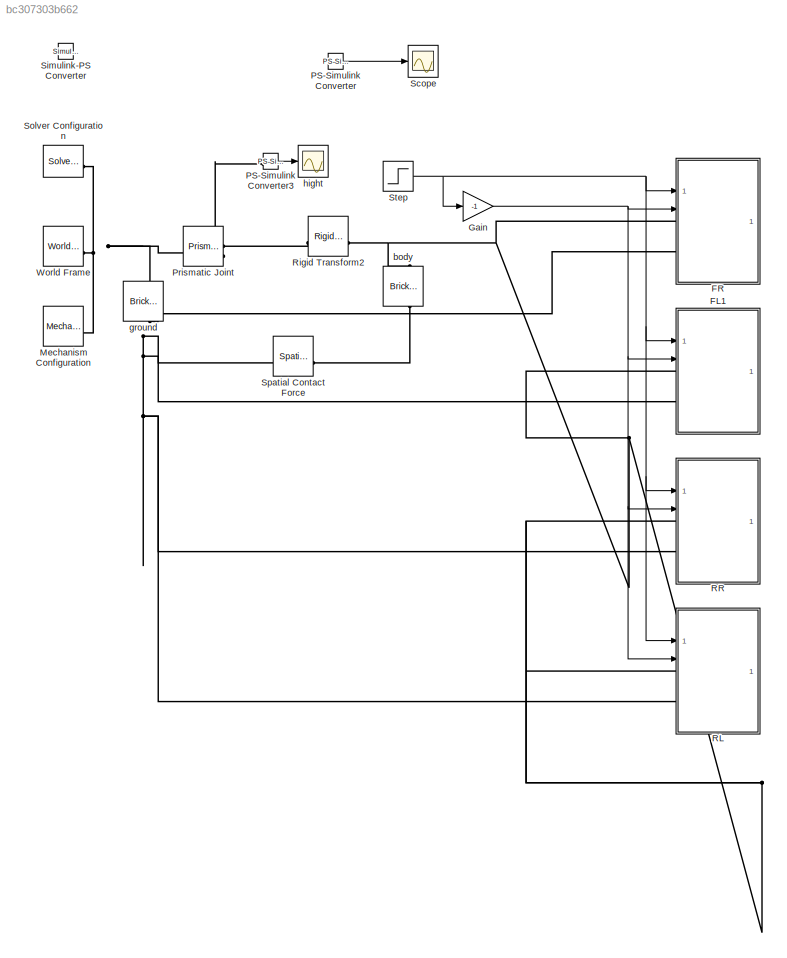
MODEL slx_bc307303b662
KIND model
CONFIG AbsTol = 1e-3
CONFIG EnableMultiTasking = on
CONFIG FixedStep = auto
CONFIG MaxStep = auto
CONFIG MinStep = auto
CONFIG RelTol = 1e-3
CONFIG SampleTimeConstraint = Unconstrained
CONFIG SolverName = VariableStepAuto
CONFIG StartTime = 0.0
CONFIG StopTime = 1
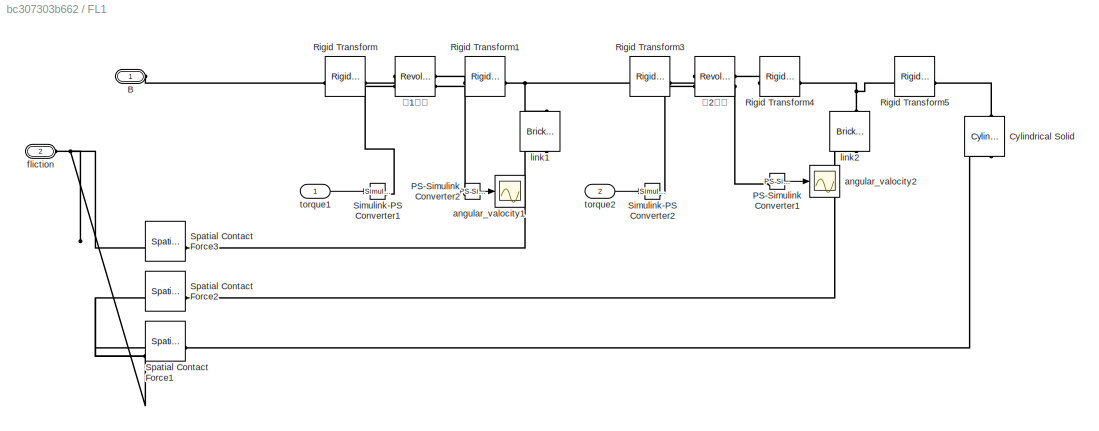
BLOCK [SubSystem] FL1
BLOCK [PMIOPort] FL1/B
  Side = Left
BLOCK [Reference] FL1/Cylindrical Solid  REF=sm_lib/Body Elements/Cylindrical Solid
  NameLocation = right
  SourceBlock = sm_lib/Body Elements/Cylindrical Solid
  SourceType = Cylindrical Solid
BLOCK [Reference] FL1/PS-Simulink Converter1  REF=nesl_utility/PS-Simulink
Converter
  SourceBlock = nesl_utility/PS-Simulink\nConverter
  SourceType = PS-Simulink\nConverter
BLOCK [Reference] FL1/PS-Simulink Converter2  REF=nesl_utility/PS-Simulink
Converter
  SourceBlock = nesl_utility/PS-Simulink\nConverter
  SourceType = PS-Simulink\nConverter
BLOCK [Reference] FL1/Rigid Transform  REF=sm_lib/Frames and
Transforms/Rigid
Transform
  SourceBlock = sm_lib/Frames and\nTransforms/Rigid\nTransform
  SourceType = Rigid\nTransform
BLOCK [Reference] FL1/Rigid Transform1  REF=sm_lib/Frames and
Transforms/Rigid
Transform
  SourceBlock = sm_lib/Frames and\nTransforms/Rigid\nTransform
  SourceType = Rigid\nTransform
BLOCK [Reference] FL1/Rigid Transform3  REF=sm_lib/Frames and
Transforms/Rigid
Transform
  SourceBlock = sm_lib/Frames and\nTransforms/Rigid\nTransform
  SourceType = Rigid\nTransform
BLOCK [Reference] FL1/Rigid Transform4  REF=sm_lib/Frames and
Transforms/Rigid
Transform
  SourceBlock = sm_lib/Frames and\nTransforms/Rigid\nTransform
  SourceType = Rigid\nTransform
BLOCK [Reference] FL1/Rigid Transform5  REF=sm_lib/Frames and
Transforms/Rigid
Transform
  SourceBlock = sm_lib/Frames and\nTransforms/Rigid\nTransform
  SourceType = Rigid\nTransform
BLOCK [Reference] FL1/Simulink-PS Converter1  REF=nesl_utility/Simulink-PS
Converter
  SourceBlock = nesl_utility/Simulink-PS\nConverter
  SourceType = Simulink-PS\nConverter
BLOCK [Reference] FL1/Simulink-PS Converter2  REF=nesl_utility/Simulink-PS
Converter
  SourceBlock = nesl_utility/Simulink-PS\nConverter
  SourceType = Simulink-PS\nConverter
BLOCK [Reference] FL1/Spatial Contact Force1  REF=sm_lib/Forces and
Torques/Spatial
Contact Force
  SourceBlock = sm_lib/Forces and\nTorques/Spatial\nContact Force
  SourceType = Spatial\nContact Force
BLOCK [Reference] FL1/Spatial Contact Force2  REF=sm_lib/Forces and
Torques/Spatial
Contact Force
  SourceBlock = sm_lib/Forces and\nTorques/Spatial\nContact Force
  SourceType = Spatial\nContact Force
BLOCK [Reference] FL1/Spatial Contact Force3  REF=sm_lib/Forces and
Torques/Spatial
Contact Force
  SourceBlock = sm_lib/Forces and\nTorques/Spatial\nContact Force
  SourceType = Spatial\nContact Force
BLOCK [Scope] FL1/angular_valocity1
  Floating = off
  NumInputPorts = 1
  ScopeSpecificationString = Simulink.scopes.TimeScopeBlockCfg('CurrentConfiguration', extmgr.ConfigurationSet(extmgr.Configuration('Core','General UI',true),extmgr.Configuration('Core','Source UI',true),extmgr.Configuration('Sources','WiredSimulink',true,'DataLoggingVariableName','ScopeData2'),extmgr.Configuration('Visuals','Time Domain',true,'SerializedDisplays',{struct('MinYLimReal','-14.41471','MaxYLimReal','43.3043','YLa...<+1426ch>
BLOCK [Scope] FL1/angular_valocity2
  Floating = off
  NumInputPorts = 1
  ScopeSpecificationString = Simulink.scopes.TimeScopeBlockCfg('CurrentConfiguration', extmgr.ConfigurationSet(extmgr.Configuration('Core','General UI',true),extmgr.Configuration('Core','Source UI',true),extmgr.Configuration('Sources','WiredSimulink',true,'DataLoggingVariableName','ScopeData1'),extmgr.Configuration('Visuals','Time Domain',true,'SerializedDisplays',{struct('MinYLimReal','-91.67363','MaxYLimReal','32.42749','YL...<+1417ch>
BLOCK [PMIOPort] FL1/fliction
  Port = 2
  Side = Left
BLOCK [Reference] FL1/link1  REF=sm_lib/Body Elements/Brick Solid
  SourceBlock = sm_lib/Body Elements/Brick Solid
  SourceType = Brick Solid
BLOCK [Reference] FL1/link2  REF=sm_lib/Body Elements/Brick Solid
  SourceBlock = sm_lib/Body Elements/Brick Solid
  SourceType = Brick Solid
BLOCK [Inport] FL1/torque1
BLOCK [Inport] FL1/torque2
  Port = 2
BLOCK [Reference] FL1/第1関節  REF=sm_lib/Joints/Revolute Joint
  SourceBlock = sm_lib/Joints/Revolute Joint
  SourceType = Revolute Joint
BLOCK [Reference] FL1/第2関節  REF=sm_lib/Joints/Revolute Joint
  SourceBlock = sm_lib/Joints/Revolute Joint
  SourceType = Revolute Joint
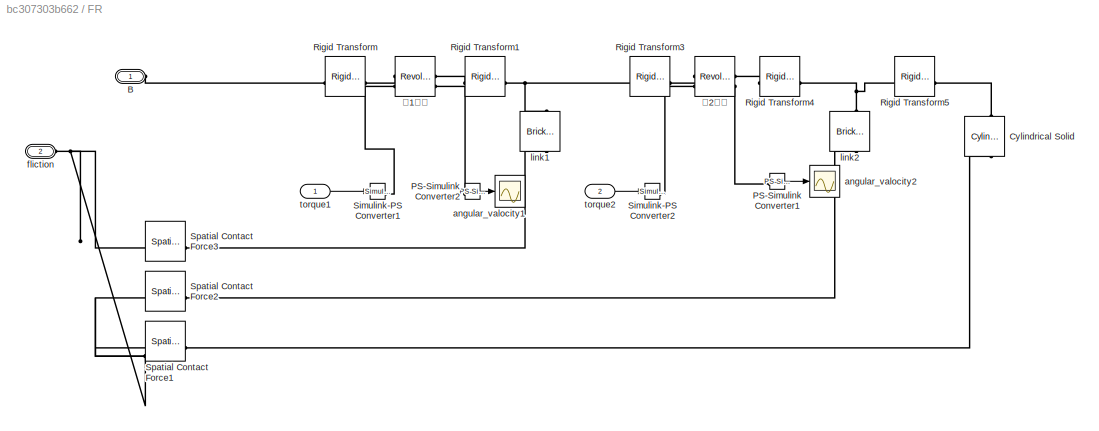
BLOCK [SubSystem] FR
BLOCK [PMIOPort] FR/B
  Side = Left
BLOCK [Reference] FR/Cylindrical Solid  REF=sm_lib/Body Elements/Cylindrical Solid
  NameLocation = right
  SourceBlock = sm_lib/Body Elements/Cylindrical Solid
  SourceType = Cylindrical Solid
BLOCK [Reference] FR/PS-Simulink Converter1  REF=nesl_utility/PS-Simulink
Converter
  SourceBlock = nesl_utility/PS-Simulink\nConverter
  SourceType = PS-Simulink\nConverter
BLOCK [Reference] FR/PS-Simulink Converter2  REF=nesl_utility/PS-Simulink
Converter
  SourceBlock = nesl_utility/PS-Simulink\nConverter
  SourceType = PS-Simulink\nConverter
BLOCK [Reference] FR/Rigid Transform  REF=sm_lib/Frames and
Transforms/Rigid
Transform
  SourceBlock = sm_lib/Frames and\nTransforms/Rigid\nTransform
  SourceType = Rigid\nTransform
BLOCK [Reference] FR/Rigid Transform1  REF=sm_lib/Frames and
Transforms/Rigid
Transform
  SourceBlock = sm_lib/Frames and\nTransforms/Rigid\nTransform
  SourceType = Rigid\nTransform
BLOCK [Reference] FR/Rigid Transform3  REF=sm_lib/Frames and
Transforms/Rigid
Transform
  SourceBlock = sm_lib/Frames and\nTransforms/Rigid\nTransform
  SourceType = Rigid\nTransform
BLOCK [Reference] FR/Rigid Transform4  REF=sm_lib/Frames and
Transforms/Rigid
Transform
  SourceBlock = sm_lib/Frames and\nTransforms/Rigid\nTransform
  SourceType = Rigid\nTransform
BLOCK [Reference] FR/Rigid Transform5  REF=sm_lib/Frames and
Transforms/Rigid
Transform
  SourceBlock = sm_lib/Frames and\nTransforms/Rigid\nTransform
  SourceType = Rigid\nTransform
BLOCK [Reference] FR/Simulink-PS Converter1  REF=nesl_utility/Simulink-PS
Converter
  SourceBlock = nesl_utility/Simulink-PS\nConverter
  SourceType = Simulink-PS\nConverter
BLOCK [Reference] FR/Simulink-PS Converter2  REF=nesl_utility/Simulink-PS
Converter
  SourceBlock = nesl_utility/Simulink-PS\nConverter
  SourceType = Simulink-PS\nConverter
BLOCK [Reference] FR/Spatial Contact Force1  REF=sm_lib/Forces and
Torques/Spatial
Contact Force
  SourceBlock = sm_lib/Forces and\nTorques/Spatial\nContact Force
  SourceType = Spatial\nContact Force
BLOCK [Reference] FR/Spatial Contact Force2  REF=sm_lib/Forces and
Torques/Spatial
Contact Force
  SourceBlock = sm_lib/Forces and\nTorques/Spatial\nContact Force
  SourceType = Spatial\nContact Force
BLOCK [Reference] FR/Spatial Contact Force3  REF=sm_lib/Forces and
Torques/Spatial
Contact Force
  SourceBlock = sm_lib/Forces and\nTorques/Spatial\nContact Force
  SourceType = Spatial\nContact Force
BLOCK [Scope] FR/angular_valocity1
  Floating = off
  NumInputPorts = 1
  ScopeSpecificationString = Simulink.scopes.TimeScopeBlockCfg('CurrentConfiguration', extmgr.ConfigurationSet(extmgr.Configuration('Core','General UI',true),extmgr.Configuration('Core','Source UI',true),extmgr.Configuration('Sources','WiredSimulink',true,'DataLoggingVariableName','ScopeData2'),extmgr.Configuration('Visuals','Time Domain',true,'SerializedDisplays',{struct('MinYLimReal','-32.30264','MaxYLimReal','35.50326','YL...<+1430ch>
BLOCK [Scope] FR/angular_valocity2
  Floating = off
  NumInputPorts = 1
  ScopeSpecificationString = Simulink.scopes.TimeScopeBlockCfg('CurrentConfiguration', extmgr.ConfigurationSet(extmgr.Configuration('Core','General UI',true),extmgr.Configuration('Core','Source UI',true),extmgr.Configuration('Sources','WiredSimulink',true,'DataLoggingVariableName','ScopeData1'),extmgr.Configuration('Visuals','Time Domain',true,'SerializedDisplays',{struct('MinYLimReal','-70.56607','MaxYLimReal','42.69296','YL...<+1417ch>
BLOCK [PMIOPort] FR/fliction
  Port = 2
  Side = Left
BLOCK [Reference] FR/link1  REF=sm_lib/Body Elements/Brick Solid
  SourceBlock = sm_lib/Body Elements/Brick Solid
  SourceType = Brick Solid
BLOCK [Reference] FR/link2  REF=sm_lib/Body Elements/Brick Solid
  SourceBlock = sm_lib/Body Elements/Brick Solid
  SourceType = Brick Solid
BLOCK [Inport] FR/torque1
BLOCK [Inport] FR/torque2
  Port = 2
BLOCK [Reference] FR/第1関節  REF=sm_lib/Joints/Revolute Joint
  SourceBlock = sm_lib/Joints/Revolute Joint
  SourceType = Revolute Joint
BLOCK [Reference] FR/第2関節  REF=sm_lib/Joints/Revolute Joint
  SourceBlock = sm_lib/Joints/Revolute Joint
  SourceType = Revolute Joint
BLOCK [Gain] Gain
  Gain = -1
BLOCK [Reference] Mechanism Configuration  REF=sm_lib/Utilities/Mechanism
Configuration
  SourceBlock = sm_lib/Utilities/Mechanism\nConfiguration
  SourceType = Mechanism\nConfiguration
BLOCK [Reference] PS-Simulink Converter  REF=nesl_utility/PS-Simulink
Converter
  SourceBlock = nesl_utility/PS-Simulink\nConverter
  SourceType = PS-Simulink\nConverter
BLOCK [Reference] PS-Simulink Converter3  REF=nesl_utility/PS-Simulink
Converter
  SourceBlock = nesl_utility/PS-Simulink\nConverter
  SourceType = PS-Simulink\nConverter
BLOCK [Reference] Prismatic Joint  REF=sm_lib/Joints/Prismatic
Joint
  SourceBlock = sm_lib/Joints/Prismatic\nJoint
  SourceType = Prismatic\nJoint
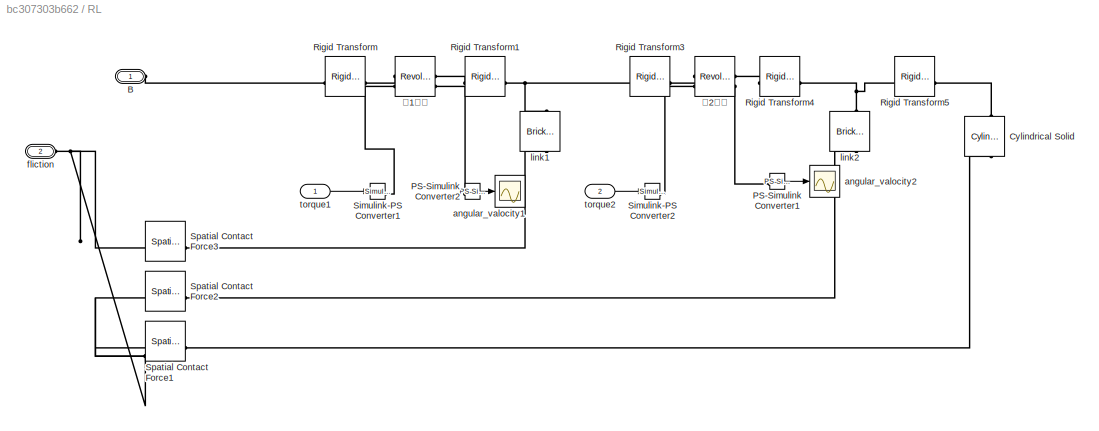
BLOCK [SubSystem] RL
BLOCK [PMIOPort] RL/B
  Side = Left
BLOCK [Reference] RL/Cylindrical Solid  REF=sm_lib/Body Elements/Cylindrical Solid
  NameLocation = right
  SourceBlock = sm_lib/Body Elements/Cylindrical Solid
  SourceType = Cylindrical Solid
BLOCK [Reference] RL/PS-Simulink Converter1  REF=nesl_utility/PS-Simulink
Converter
  SourceBlock = nesl_utility/PS-Simulink\nConverter
  SourceType = PS-Simulink\nConverter
BLOCK [Reference] RL/PS-Simulink Converter2  REF=nesl_utility/PS-Simulink
Converter
  SourceBlock = nesl_utility/PS-Simulink\nConverter
  SourceType = PS-Simulink\nConverter
BLOCK [Reference] RL/Rigid Transform  REF=sm_lib/Frames and
Transforms/Rigid
Transform
  SourceBlock = sm_lib/Frames and\nTransforms/Rigid\nTransform
  SourceType = Rigid\nTransform
BLOCK [Reference] RL/Rigid Transform1  REF=sm_lib/Frames and
Transforms/Rigid
Transform
  SourceBlock = sm_lib/Frames and\nTransforms/Rigid\nTransform
  SourceType = Rigid\nTransform
BLOCK [Reference] RL/Rigid Transform3  REF=sm_lib/Frames and
Transforms/Rigid
Transform
  SourceBlock = sm_lib/Frames and\nTransforms/Rigid\nTransform
  SourceType = Rigid\nTransform
BLOCK [Reference] RL/Rigid Transform4  REF=sm_lib/Frames and
Transforms/Rigid
Transform
  SourceBlock = sm_lib/Frames and\nTransforms/Rigid\nTransform
  SourceType = Rigid\nTransform
BLOCK [Reference] RL/Rigid Transform5  REF=sm_lib/Frames and
Transforms/Rigid
Transform
  SourceBlock = sm_lib/Frames and\nTransforms/Rigid\nTransform
  SourceType = Rigid\nTransform
BLOCK [Reference] RL/Simulink-PS Converter1  REF=nesl_utility/Simulink-PS
Converter
  SourceBlock = nesl_utility/Simulink-PS\nConverter
  SourceType = Simulink-PS\nConverter
BLOCK [Reference] RL/Simulink-PS Converter2  REF=nesl_utility/Simulink-PS
Converter
  SourceBlock = nesl_utility/Simulink-PS\nConverter
  SourceType = Simulink-PS\nConverter
BLOCK [Reference] RL/Spatial Contact Force1  REF=sm_lib/Forces and
Torques/Spatial
Contact Force
  SourceBlock = sm_lib/Forces and\nTorques/Spatial\nContact Force
  SourceType = Spatial\nContact Force
BLOCK [Reference] RL/Spatial Contact Force2  REF=sm_lib/Forces and
Torques/Spatial
Contact Force
  SourceBlock = sm_lib/Forces and\nTorques/Spatial\nContact Force
  SourceType = Spatial\nContact Force
BLOCK [Reference] RL/Spatial Contact Force3  REF=sm_lib/Forces and
Torques/Spatial
Contact Force
  SourceBlock = sm_lib/Forces and\nTorques/Spatial\nContact Force
  SourceType = Spatial\nContact Force
BLOCK [Scope] RL/angular_valocity1
  Floating = off
  NumInputPorts = 1
  ScopeSpecificationString = Simulink.scopes.TimeScopeBlockCfg('CurrentConfiguration', extmgr.ConfigurationSet(extmgr.Configuration('Core','General UI',true),extmgr.Configuration('Core','Source UI',true),extmgr.Configuration('Sources','WiredSimulink',true,'DataLoggingVariableName','ScopeData2'),extmgr.Configuration('Visuals','Time Domain',true,'SerializedDisplays',{struct('MinYLimReal','-14.41471','MaxYLimReal','43.3043','YLa...<+1426ch>
BLOCK [Scope] RL/angular_valocity2
  Floating = off
  NumInputPorts = 1
  ScopeSpecificationString = Simulink.scopes.TimeScopeBlockCfg('CurrentConfiguration', extmgr.ConfigurationSet(extmgr.Configuration('Core','General UI',true),extmgr.Configuration('Core','Source UI',true),extmgr.Configuration('Sources','WiredSimulink',true,'DataLoggingVariableName','ScopeData1'),extmgr.Configuration('Visuals','Time Domain',true,'SerializedDisplays',{struct('MinYLimReal','-91.67363','MaxYLimReal','32.42749','YL...<+1417ch>
BLOCK [PMIOPort] RL/fliction
  Port = 2
  Side = Left
BLOCK [Reference] RL/link1  REF=sm_lib/Body Elements/Brick Solid
  SourceBlock = sm_lib/Body Elements/Brick Solid
  SourceType = Brick Solid
BLOCK [Reference] RL/link2  REF=sm_lib/Body Elements/Brick Solid
  SourceBlock = sm_lib/Body Elements/Brick Solid
  SourceType = Brick Solid
BLOCK [Inport] RL/torque1
BLOCK [Inport] RL/torque2
  Port = 2
BLOCK [Reference] RL/第1関節  REF=sm_lib/Joints/Revolute Joint
  SourceBlock = sm_lib/Joints/Revolute Joint
  SourceType = Revolute Joint
BLOCK [Reference] RL/第2関節  REF=sm_lib/Joints/Revolute Joint
  SourceBlock = sm_lib/Joints/Revolute Joint
  SourceType = Revolute Joint
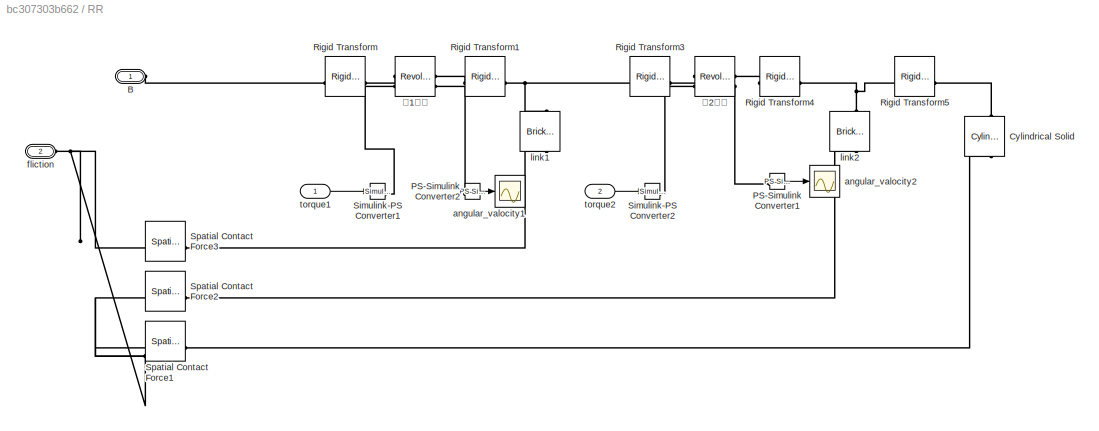
BLOCK [SubSystem] RR
BLOCK [PMIOPort] RR/B
  Side = Left
BLOCK [Reference] RR/Cylindrical Solid  REF=sm_lib/Body Elements/Cylindrical Solid
  NameLocation = right
  SourceBlock = sm_lib/Body Elements/Cylindrical Solid
  SourceType = Cylindrical Solid
BLOCK [Reference] RR/PS-Simulink Converter1  REF=nesl_utility/PS-Simulink
Converter
  SourceBlock = nesl_utility/PS-Simulink\nConverter
  SourceType = PS-Simulink\nConverter
BLOCK [Reference] RR/PS-Simulink Converter2  REF=nesl_utility/PS-Simulink
Converter
  SourceBlock = nesl_utility/PS-Simulink\nConverter
  SourceType = PS-Simulink\nConverter
BLOCK [Reference] RR/Rigid Transform  REF=sm_lib/Frames and
Transforms/Rigid
Transform
  SourceBlock = sm_lib/Frames and\nTransforms/Rigid\nTransform
  SourceType = Rigid\nTransform
BLOCK [Reference] RR/Rigid Transform1  REF=sm_lib/Frames and
Transforms/Rigid
Transform
  SourceBlock = sm_lib/Frames and\nTransforms/Rigid\nTransform
  SourceType = Rigid\nTransform
BLOCK [Reference] RR/Rigid Transform3  REF=sm_lib/Frames and
Transforms/Rigid
Transform
  SourceBlock = sm_lib/Frames and\nTransforms/Rigid\nTransform
  SourceType = Rigid\nTransform
BLOCK [Reference] RR/Rigid Transform4  REF=sm_lib/Frames and
Transforms/Rigid
Transform
  SourceBlock = sm_lib/Frames and\nTransforms/Rigid\nTransform
  SourceType = Rigid\nTransform
BLOCK [Reference] RR/Rigid Transform5  REF=sm_lib/Frames and
Transforms/Rigid
Transform
  SourceBlock = sm_lib/Frames and\nTransforms/Rigid\nTransform
  SourceType = Rigid\nTransform
BLOCK [Reference] RR/Simulink-PS Converter1  REF=nesl_utility/Simulink-PS
Converter
  SourceBlock = nesl_utility/Simulink-PS\nConverter
  SourceType = Simulink-PS\nConverter
BLOCK [Reference] RR/Simulink-PS Converter2  REF=nesl_utility/Simulink-PS
Converter
  SourceBlock = nesl_utility/Simulink-PS\nConverter
  SourceType = Simulink-PS\nConverter
BLOCK [Reference] RR/Spatial Contact Force1  REF=sm_lib/Forces and
Torques/Spatial
Contact Force
  SourceBlock = sm_lib/Forces and\nTorques/Spatial\nContact Force
  SourceType = Spatial\nContact Force
BLOCK [Reference] RR/Spatial Contact Force2  REF=sm_lib/Forces and
Torques/Spatial
Contact Force
  SourceBlock = sm_lib/Forces and\nTorques/Spatial\nContact Force
  SourceType = Spatial\nContact Force
BLOCK [Reference] RR/Spatial Contact Force3  REF=sm_lib/Forces and
Torques/Spatial
Contact Force
  SourceBlock = sm_lib/Forces and\nTorques/Spatial\nContact Force
  SourceType = Spatial\nContact Force
BLOCK [Scope] RR/angular_valocity1
  Floating = off
  NumInputPorts = 1
  ScopeSpecificationString = Simulink.scopes.TimeScopeBlockCfg('CurrentConfiguration', extmgr.ConfigurationSet(extmgr.Configuration('Core','General UI',true),extmgr.Configuration('Core','Source UI',true),extmgr.Configuration('Sources','WiredSimulink',true,'DataLoggingVariableName','ScopeData2'),extmgr.Configuration('Visuals','Time Domain',true,'SerializedDisplays',{struct('MinYLimReal','-15.2755','MaxYLimReal','53.61427','YLa...<+1428ch>
BLOCK [Scope] RR/angular_valocity2
  Floating = off
  NumInputPorts = 1
  ScopeSpecificationString = Simulink.scopes.TimeScopeBlockCfg('CurrentConfiguration', extmgr.ConfigurationSet(extmgr.Configuration('Core','General UI',true),extmgr.Configuration('Core','Source UI',true),extmgr.Configuration('Sources','WiredSimulink',true,'DataLoggingVariableName','ScopeData1'),extmgr.Configuration('Visuals','Time Domain',true,'SerializedDisplays',{struct('MinYLimReal','-117.23187','MaxYLimReal','34.60725','Y...<+1423ch>
BLOCK [PMIOPort] RR/fliction
  Port = 2
  Side = Left
BLOCK [Reference] RR/link1  REF=sm_lib/Body Elements/Brick Solid
  SourceBlock = sm_lib/Body Elements/Brick Solid
  SourceType = Brick Solid
BLOCK [Reference] RR/link2  REF=sm_lib/Body Elements/Brick Solid
  SourceBlock = sm_lib/Body Elements/Brick Solid
  SourceType = Brick Solid
BLOCK [Inport] RR/torque1
BLOCK [Inport] RR/torque2
  Port = 2
BLOCK [Reference] RR/第1関節  REF=sm_lib/Joints/Revolute Joint
  SourceBlock = sm_lib/Joints/Revolute Joint
  SourceType = Revolute Joint
BLOCK [Reference] RR/第2関節  REF=sm_lib/Joints/Revolute Joint
  SourceBlock = sm_lib/Joints/Revolute Joint
  SourceType = Revolute Joint
BLOCK [Reference] Rigid Transform2  REF=sm_lib/Frames and
Transforms/Rigid
Transform
  SourceBlock = sm_lib/Frames and\nTransforms/Rigid\nTransform
  SourceType = Rigid\nTransform
BLOCK [Scope] Scope
  Floating = off
  NumInputPorts = 1
  ScopeSpecificationString = Simulink.scopes.TimeScopeBlockCfg('CurrentConfiguration', extmgr.ConfigurationSet(extmgr.Configuration('Core','General UI',true),extmgr.Configuration('Core','Source UI',true),extmgr.Configuration('Sources','WiredSimulink',true),extmgr.Configuration('Visuals','Time Domain',true),extmgr.Configuration('Tools','Plot Navigation',true),extmgr.Configuration('Tools','Measurements',true,'Version','2019b'))...<+19ch>
BLOCK [Reference] Simulink-PS Converter  REF=nesl_utility/Simulink-PS
Converter
  SourceBlock = nesl_utility/Simulink-PS\nConverter
  SourceType = Simulink-PS\nConverter
BLOCK [Reference] Solver Configuration  REF=nesl_utility/Solver
Configuration
  SourceBlock = nesl_utility/Solver\nConfiguration
  SourceType = Solver\nConfiguration
BLOCK [Reference] Spatial Contact Force  REF=sm_lib/Forces and
Torques/Spatial
Contact Force
  SourceBlock = sm_lib/Forces and\nTorques/Spatial\nContact Force
  SourceType = Spatial\nContact Force
BLOCK [Step] Step
  After = -0.05
  Before = 0.25
  SampleTime = 0
  Time = 0.5
BLOCK [Reference] World Frame  REF=sm_lib/Frames and
Transforms/World Frame
  SourceBlock = sm_lib/Frames and\nTransforms/World Frame
  SourceType = World Frame
BLOCK [Reference] body  REF=sm_lib/Body Elements/Brick Solid
  SourceBlock = sm_lib/Body Elements/Brick Solid
  SourceType = Brick Solid
BLOCK [Reference] ground  REF=sm_lib/Body Elements/Brick Solid
  SourceBlock = sm_lib/Body Elements/Brick Solid
  SourceType = Brick Solid
BLOCK [Scope] hight
  Floating = off
  NumInputPorts = 1
  ScopeSpecificationString = Simulink.scopes.TimeScopeBlockCfg('CurrentConfiguration', extmgr.ConfigurationSet(extmgr.Configuration('Core','General UI',true),extmgr.Configuration('Core','Source UI',true),extmgr.Configuration('Sources','WiredSimulink',true,'DataLoggingVariableName','ScopeData3'),extmgr.Configuration('Visuals','Time Domain',true,'SerializedDisplays',{struct('MinYLimReal','-0.02891','MaxYLimReal','0.25457','YLab...<+1436ch>
LINE FL1/PS-Simulink Converter1:1 -> FL1/angular_valocity2:1
LINE FL1/PS-Simulink Converter2:1 -> FL1/angular_valocity1:1
LINE FL1/torque1:1 -> FL1/Simulink-PS Converter1:1
LINE FL1/torque2:1 -> FL1/Simulink-PS Converter2:1
LINE FR/PS-Simulink Converter1:1 -> FR/angular_valocity2:1
LINE FR/PS-Simulink Converter2:1 -> FR/angular_valocity1:1
LINE FR/torque1:1 -> FR/Simulink-PS Converter1:1
LINE FR/torque2:1 -> FR/Simulink-PS Converter2:1
NET Gain:1 -> FL1:2, FR:2, RL:2, RR:2
LINE PS-Simulink Converter3:1 -> hight:1
LINE PS-Simulink Converter:1 -> Scope:1
LINE RL/PS-Simulink Converter1:1 -> RL/angular_valocity2:1
LINE RL/PS-Simulink Converter2:1 -> RL/angular_valocity1:1
LINE RL/torque1:1 -> RL/Simulink-PS Converter1:1
LINE RL/torque2:1 -> RL/Simulink-PS Converter2:1
LINE RR/PS-Simulink Converter1:1 -> RR/angular_valocity2:1
LINE RR/PS-Simulink Converter2:1 -> RR/angular_valocity1:1
LINE RR/torque1:1 -> RR/Simulink-PS Converter1:1
LINE RR/torque2:1 -> RR/Simulink-PS Converter2:1
NET Step:1 -> FL1:1, FR:1, Gain:1, RL:1, RR:1
PLINE FL1/B:RConn1 -- FL1/Rigid Transform:LConn1
PLINE FL1/Cylindrical Solid:LConn1 -- FL1/Spatial Contact Force1:RConn1
PLINE FL1/Cylindrical Solid:RConn1 -- FL1/Rigid Transform5:RConn1
PLINE FL1/PS-Simulink Converter1:LConn1 -- FL1/第2関節:RConn2
PLINE FL1/PS-Simulink Converter2:LConn1 -- FL1/第1関節:RConn2
PLINE FL1/Rigid Transform1:LConn1 -- FL1/第1関節:RConn1
PNET net1: FL1/Rigid Transform1:RConn1 -- FL1/Rigid Transform3:LConn1 -- FL1/link1:RConn1
PLINE FL1/Rigid Transform3:RConn1 -- FL1/第2関節:LConn1
PLINE FL1/Rigid Transform4:LConn1 -- FL1/第2関節:RConn1
PNET net2: FL1/Rigid Transform4:RConn1 -- FL1/Rigid Transform5:LConn1 -- FL1/link2:RConn1
PLINE FL1/Rigid Transform:RConn1 -- FL1/第1関節:LConn1
PLINE FL1/Simulink-PS Converter1:RConn1 -- FL1/第1関節:LConn2
PLINE FL1/Simulink-PS Converter2:RConn1 -- FL1/第2関節:LConn2
PNET net3: FL1/Spatial Contact Force1:LConn1 -- FL1/Spatial Contact Force2:LConn1 -- FL1/Spatial Contact Force3:LConn1 -- FL1/fliction:RConn1
PLINE FL1/Spatial Contact Force2:RConn1 -- FL1/link2:LConn1
PLINE FL1/Spatial Contact Force3:RConn1 -- FL1/link1:LConn1
PNET net4: FL1:LConn1 -- FR:LConn1 -- RL:LConn1 -- RR:LConn1 -- Rigid Transform2:RConn1 -- body:RConn1
PNET net5: FL1:LConn2 -- FR:LConn2 -- RL:LConn2 -- RR:LConn2 -- Spatial Contact Force:LConn1 -- ground:LConn1
PLINE FR/B:RConn1 -- FR/Rigid Transform:LConn1
PLINE FR/Cylindrical Solid:LConn1 -- FR/Spatial Contact Force1:RConn1
PLINE FR/Cylindrical Solid:RConn1 -- FR/Rigid Transform5:RConn1
PLINE FR/PS-Simulink Converter1:LConn1 -- FR/第2関節:RConn2
PLINE FR/PS-Simulink Converter2:LConn1 -- FR/第1関節:RConn2
PLINE FR/Rigid Transform1:LConn1 -- FR/第1関節:RConn1
PNET net6: FR/Rigid Transform1:RConn1 -- FR/Rigid Transform3:LConn1 -- FR/link1:RConn1
PLINE FR/Rigid Transform3:RConn1 -- FR/第2関節:LConn1
PLINE FR/Rigid Transform4:LConn1 -- FR/第2関節:RConn1
PNET net7: FR/Rigid Transform4:RConn1 -- FR/Rigid Transform5:LConn1 -- FR/link2:RConn1
PLINE FR/Rigid Transform:RConn1 -- FR/第1関節:LConn1
PLINE FR/Simulink-PS Converter1:RConn1 -- FR/第1関節:LConn2
PLINE FR/Simulink-PS Converter2:RConn1 -- FR/第2関節:LConn2
PNET net8: FR/Spatial Contact Force1:LConn1 -- FR/Spatial Contact Force2:LConn1 -- FR/Spatial Contact Force3:LConn1 -- FR/fliction:RConn1
PLINE FR/Spatial Contact Force2:RConn1 -- FR/link2:LConn1
PLINE FR/Spatial Contact Force3:RConn1 -- FR/link1:LConn1
PNET net9: Mechanism Configuration:RConn1 -- Prismatic Joint:LConn1 -- Solver Configuration:RConn1 -- World Frame:RConn1 -- ground:RConn1
PLINE PS-Simulink Converter3:LConn1 -- Prismatic Joint:RConn2
PLINE Prismatic Joint:RConn1 -- Rigid Transform2:LConn1
PLINE RL/B:RConn1 -- RL/Rigid Transform:LConn1
PLINE RL/Cylindrical Solid:LConn1 -- RL/Spatial Contact Force1:RConn1
PLINE RL/Cylindrical Solid:RConn1 -- RL/Rigid Transform5:RConn1
PLINE RL/PS-Simulink Converter1:LConn1 -- RL/第2関節:RConn2
PLINE RL/PS-Simulink Converter2:LConn1 -- RL/第1関節:RConn2
PLINE RL/Rigid Transform1:LConn1 -- RL/第1関節:RConn1
PNET net10: RL/Rigid Transform1:RConn1 -- RL/Rigid Transform3:LConn1 -- RL/link1:RConn1
PLINE RL/Rigid Transform3:RConn1 -- RL/第2関節:LConn1
PLINE RL/Rigid Transform4:LConn1 -- RL/第2関節:RConn1
PNET net11: RL/Rigid Transform4:RConn1 -- RL/Rigid Transform5:LConn1 -- RL/link2:RConn1
PLINE RL/Rigid Transform:RConn1 -- RL/第1関節:LConn1
PLINE RL/Simulink-PS Converter1:RConn1 -- RL/第1関節:LConn2
PLINE RL/Simulink-PS Converter2:RConn1 -- RL/第2関節:LConn2
PNET net12: RL/Spatial Contact Force1:LConn1 -- RL/Spatial Contact Force2:LConn1 -- RL/Spatial Contact Force3:LConn1 -- RL/fliction:RConn1
PLINE RL/Spatial Contact Force2:RConn1 -- RL/link2:LConn1
PLINE RL/Spatial Contact Force3:RConn1 -- RL/link1:LConn1
PLINE RR/B:RConn1 -- RR/Rigid Transform:LConn1
PLINE RR/Cylindrical Solid:LConn1 -- RR/Spatial Contact Force1:RConn1
PLINE RR/Cylindrical Solid:RConn1 -- RR/Rigid Transform5:RConn1
PLINE RR/PS-Simulink Converter1:LConn1 -- RR/第2関節:RConn2
PLINE RR/PS-Simulink Converter2:LConn1 -- RR/第1関節:RConn2
PLINE RR/Rigid Transform1:LConn1 -- RR/第1関節:RConn1
PNET net13: RR/Rigid Transform1:RConn1 -- RR/Rigid Transform3:LConn1 -- RR/link1:RConn1
PLINE RR/Rigid Transform3:RConn1 -- RR/第2関節:LConn1
PLINE RR/Rigid Transform4:LConn1 -- RR/第2関節:RConn1
PNET net14: RR/Rigid Transform4:RConn1 -- RR/Rigid Transform5:LConn1 -- RR/link2:RConn1
PLINE RR/Rigid Transform:RConn1 -- RR/第1関節:LConn1
PLINE RR/Simulink-PS Converter1:RConn1 -- RR/第1関節:LConn2
PLINE RR/Simulink-PS Converter2:RConn1 -- RR/第2関節:LConn2
PNET net15: RR/Spatial Contact Force1:LConn1 -- RR/Spatial Contact Force2:LConn1 -- RR/Spatial Contact Force3:LConn1 -- RR/fliction:RConn1
PLINE RR/Spatial Contact Force2:RConn1 -- RR/link2:LConn1
PLINE RR/Spatial Contact Force3:RConn1 -- RR/link1:LConn1
PLINE Spatial Contact Force:RConn1 -- body:LConn1
note: NET lines group one-source signal fan-out (src -> all destinations, sorted); 1:1 wires keep LINE; PNET lines group multi-terminal physical nets as a canonical sorted terminal list (undirected conserving connections); 2-terminal nets keep the pairwise PLINE form
